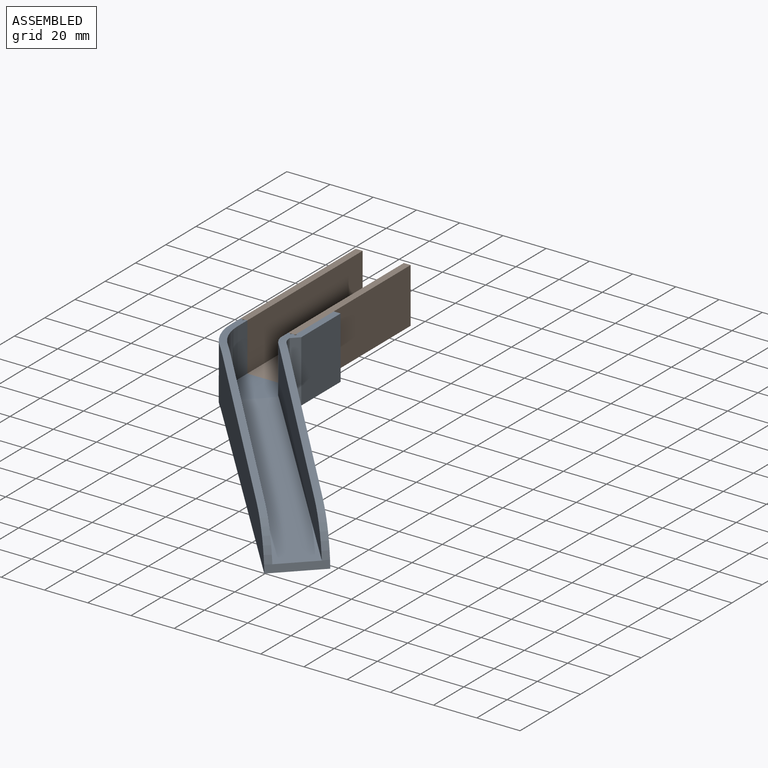
[diagram: assembled view]
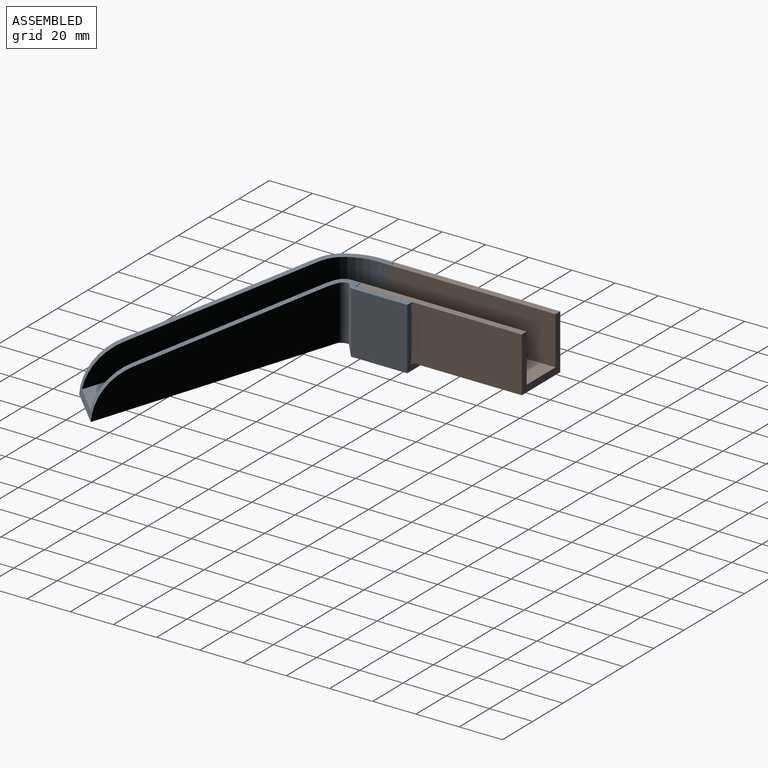
[diagram: assembled view, second angle]
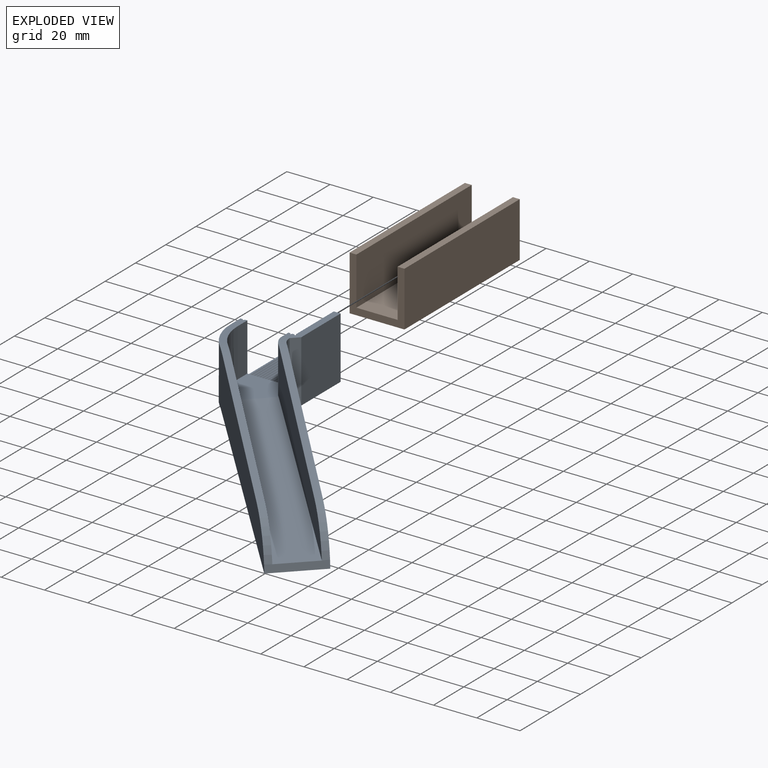
[diagram: exploded view]
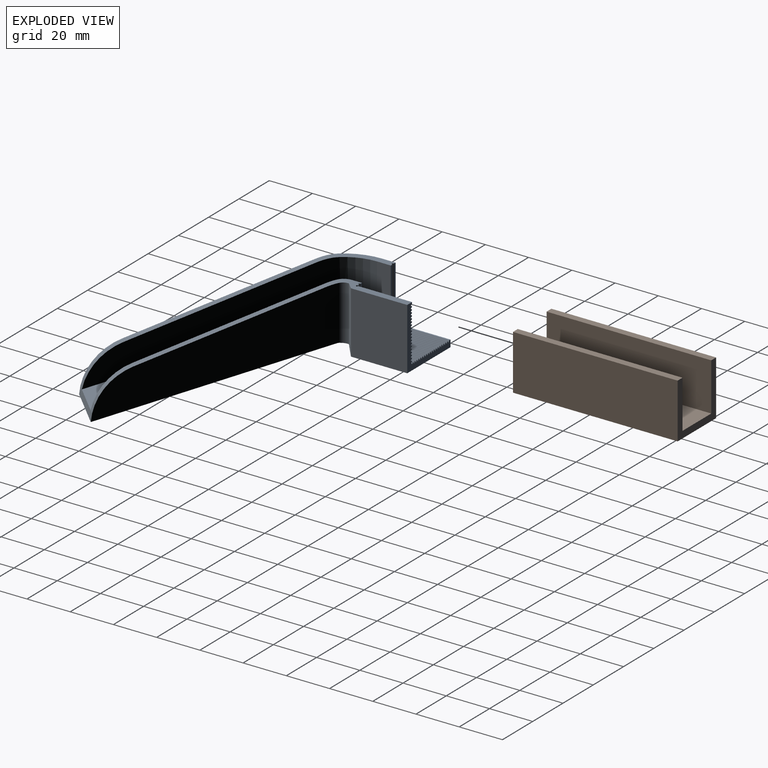
[diagram: exploded view, second angle]
ASSEMBLY  parts=2 mates=3
PART A: 246 faces, bbox 94.3x118.6x50.9 mm
  f0: plane 23.06x20.96mm, normal (0,1,0), area 60mm2, adj f1,f139,f142,f149,f152,f155,f237,f242
  f1: plane 23.57x0.89mm, normal (0.87,0.5,0), area 23.9mm2, adj f0,f139,f235,f242
  f2: plane 20.96x0.84mm, normal (0,1,0), area 17.5mm2, adj f4,f234,f237,f241
  f3: plane 24.92x1.07mm, normal (0,1,0), area 26.8mm2, adj f5,f136,f142,f238
  f4: cylinder r=0.48mm len=21.52mm, axis (1,0,0), area 16mm2, adj f2,f171,f234,f237
  f5: cylinder r=0.48mm len=1.35mm, axis (1,0,0), area 0.9mm2, adj f3,f136,f171,f238
  f6: plane 24.92x0.76mm, normal (-1,0,0), area 18.9mm2, adj f8,f139,f164,f231
  f7: plane 1.03x0mm, normal (-1,0,0), area 0mm2, adj f8,f169
  f8: cylinder r=0.48mm len=1.03mm, axis (0,0,1), area 0.7mm2, adj f6,f7,f139,f231
  f9: plane 24.92x0.24mm, normal (-1,0,0), area 6.1mm2, adj f11,f164,f228,f232
  f10: plane 0.79x0mm, normal (-1,0,0), area 0mm2, adj f11,f169
  f11: cylinder r=0.48mm len=0.79mm, axis (0,0,1), area 0.4mm2, adj f9,f10,f228,f232
  f12: plane 24.92x0.24mm, normal (-1,0,0), area 6.1mm2, adj f14,f164,f225,f229
  f13: plane 0.79x0mm, normal (-1,0,0), area 0mm2, adj f14,f169
  f14: cylinder r=0.48mm len=0.79mm, axis (0,0,1), area 0.4mm2, adj f12,f13,f225,f229
  f15: plane 24.92x0.24mm, normal (-1,0,0), area 6.1mm2, adj f17,f164,f222,f226
  f16: plane 0.79x0mm, normal (-1,0,0), area 0mm2, adj f17,f169
  f17: cylinder r=0.48mm len=0.79mm, axis (0,0,1), area 0.4mm2, adj f15,f16,f222,f226
  f18: plane 24.92x0.24mm, normal (-1,0,0), area 6.1mm2, adj f20,f164,f219,f223
  f19: plane 0.79x0mm, normal (-1,0,0), area 0mm2, adj f20,f169
  f20: cylinder r=0.48mm len=0.79mm, axis (0,0,1), area 0.4mm2, adj f18,f19,f219,f223
  f21: plane 24.92x0.24mm, normal (-1,0,0), area 6.1mm2, adj f23,f164,f216,f220
  f22: plane 0.79x0mm, normal (-1,0,0), area 0mm2, adj f23,f169
  f23: cylinder r=0.48mm len=0.79mm, axis (0,0,1), area 0.4mm2, adj f21,f22,f216,f220
  f24: plane 24.92x0.24mm, normal (-1,0,0), area 6.1mm2, adj f26,f164,f213,f217
  f25: plane 0.79x0mm, normal (-1,0,0), area 0mm2, adj f26,f169
  f26: cylinder r=0.48mm len=0.79mm, axis (0,0,1), area 0.4mm2, adj f24,f25,f213,f217
  f27: plane 24.92x0.24mm, normal (-1,0,0), area 6.1mm2, adj f29,f164,f210,f214
  f28: plane 0.79x0mm, normal (-1,0,0), area 0mm2, adj f29,f169
  f29: cylinder r=0.48mm len=0.79mm, axis (0,0,1), area 0.4mm2, adj f27,f28,f210,f214
  f30: plane 24.92x0.24mm, normal (-1,0,0), area 6.1mm2, adj f32,f164,f207,f211
  f31: plane 0.79x0mm, normal (-1,0,0), area 0mm2, adj f32,f169
  f32: cylinder r=0.48mm len=0.79mm, axis (0,0,1), area 0.4mm2, adj f30,f31,f207,f211
  f33: plane 24.92x0.24mm, normal (-1,0,0), area 6.1mm2, adj f35,f164,f202,f204
  f34: plane 0.79x0mm, normal (-1,0,0), area 0mm2, adj f35,f169
  f35: cylinder r=0.48mm len=0.79mm, axis (0,0,1), area 0.4mm2, adj f33,f34,f202,f204
  f36: plane 24.92x0.24mm, normal (-1,0,0), area 6.1mm2, adj f38,f164,f199,f201
  f37: plane 0.79x0mm, normal (-1,0,0), area 0mm2, adj f38,f169
  f38: cylinder r=0.48mm len=0.79mm, axis (0,0,1), area 0.4mm2, adj f36,f37,f199,f201
  f39: plane 24.92x0.24mm, normal (-1,0,0), area 6.1mm2, adj f41,f164,f196,f198
  f40: plane 0.79x0mm, normal (-1,0,0), area 0mm2, adj f41,f169
  f41: cylinder r=0.48mm len=0.79mm, axis (0,0,1), area 0.4mm2, adj f39,f40,f196,f198
  f42: plane 24.92x0.24mm, normal (-1,0,0), area 6.1mm2, adj f44,f164,f193,f195
  f43: plane 0.79x0mm, normal (-1,0,0), area 0mm2, adj f44,f169
  f44: cylinder r=0.48mm len=0.79mm, axis (0,0,1), area 0.4mm2, adj f42,f43,f193,f195
  f45: plane 24.92x0.24mm, normal (-1,0,0), area 6.1mm2, adj f47,f164,f190,f192
  f46: plane 0.79x0mm, normal (-1,0,0), area 0mm2, adj f47,f169
  f47: cylinder r=0.48mm len=0.79mm, axis (0,0,1), area 0.4mm2, adj f45,f46,f190,f192
  f48: plane 24.92x0.24mm, normal (-1,0,0), area 6.1mm2, adj f50,f164,f187,f189
  f49: plane 0.79x0mm, normal (-1,0,0), area 0mm2, adj f50,f169
  f50: cylinder r=0.48mm len=0.79mm, axis (0,0,1), area 0.4mm2, adj f48,f49,f187,f189
  f51: plane 24.92x0.24mm, normal (-1,0,0), area 6.1mm2, adj f53,f164,f184,f186
  f52: plane 0.79x0mm, normal (-1,0,0), area 0mm2, adj f53,f169
  f53: cylinder r=0.48mm len=0.79mm, axis (0,0,1), area 0.4mm2, adj f51,f52,f184,f186
  f54: plane 24.92x0.24mm, normal (-1,0,0), area 6.1mm2, adj f56,f164,f181,f183
  f55: plane 0.79x0mm, normal (-1,0,0), area 0mm2, adj f56,f169
  f56: cylinder r=0.48mm len=0.79mm, axis (0,0,1), area 0.4mm2, adj f54,f55,f181,f183
  f57: plane 24.92x0.24mm, normal (-1,0,0), area 6.1mm2, adj f59,f164,f178,f180
  f58: plane 0.79x0mm, normal (-1,0,0), area 0mm2, adj f59,f169
  f59: cylinder r=0.48mm len=0.79mm, axis (0,0,1), area 0.4mm2, adj f57,f58,f178,f180
  f60: plane 24.92x0.24mm, normal (-1,0,0), area 6.1mm2, adj f62,f164,f177,f208
  f61: plane 0.79x0mm, normal (-1,0,0), area 0mm2, adj f62,f169
  f62: cylinder r=0.48mm len=0.79mm, axis (0,0,1), area 0.4mm2, adj f60,f61,f177,f208
  f63: plane 24.92x0.31mm, normal (0,0,1), area 7.8mm2, adj f64,f164,f171,f239
  f64: plane 25.52x1.01mm, normal (-0.87,0,0.5), area 25.9mm2, adj f63,f65,f66,f164,f171
  f65: plane 25.52x1.01mm, normal (0.87,0,0.5), area 25.9mm2, adj f64,f66,f67,f164,f171
  f66: plane 0.48x0.41mm, normal (0,1,0), area 0.1mm2, adj f64,f65,f171
  f67: plane 24.92x0.24mm, normal (0,0,1), area 6.1mm2, adj f65,f68,f164,f171
  f68: plane 25.52x1.01mm, normal (-0.87,0,0.5), area 25.9mm2, adj f67,f69,f70,f164,f171
  f69: plane 25.52x1.01mm, normal (0.87,0,0.5), area 25.9mm2, adj f68,f70,f71,f164,f171
  f70: plane 0.48x0.41mm, normal (0,1,0), area 0.1mm2, adj f68,f69,f171
  f71: plane 24.92x0.24mm, normal (0,0,1), area 6.1mm2, adj f69,f72,f164,f171
  f72: plane 25.52x1.01mm, normal (-0.87,0,0.5), area 25.9mm2, adj f71,f73,f74,f164,f171
  f73: plane 25.52x1.01mm, normal (0.87,0,0.5), area 25.9mm2, adj f72,f74,f75,f164,f171
  f74: plane 0.48x0.41mm, normal (0,1,0), area 0.1mm2, adj f72,f73,f171
  f75: plane 24.92x0.24mm, normal (0,0,1), area 6.1mm2, adj f73,f76,f164,f171
  f76: plane 25.52x1.01mm, normal (-0.87,0,0.5), area 25.9mm2, adj f75,f77,f78,f164,f171
  f77: plane 25.52x1.01mm, normal (0.87,0,0.5), area 25.9mm2, adj f76,f78,f79,f164,f171
  f78: plane 0.48x0.41mm, normal (0,1,0), area 0.1mm2, adj f76,f77,f171
  f79: plane 24.92x0.24mm, normal (0,0,1), area 6.1mm2, adj f77,f80,f164,f171
  f80: plane 25.52x1.01mm, normal (-0.87,0,0.5), area 25.9mm2, adj f79,f81,f82,f164,f171
  f81: plane 25.52x1.01mm, normal (0.87,0,0.5), area 25.9mm2, adj f80,f82,f83,f164,f171
  f82: plane 0.48x0.41mm, normal (0,1,0), area 0.1mm2, adj f80,f81,f171
  f83: plane 24.92x0.24mm, normal (0,0,1), area 6.1mm2, adj f81,f84,f164,f171
  f84: plane 25.52x1.01mm, normal (-0.87,0,0.5), area 25.9mm2, adj f83,f85,f86,f164,f171
  f85: plane 25.52x1.01mm, normal (0.87,0,0.5), area 25.9mm2, adj f84,f86,f87,f164,f171
  f86: plane 0.48x0.41mm, normal (0,1,0), area 0.1mm2, adj f84,f85,f171
  f87: plane 24.92x0.24mm, normal (0,0,1), area 6.1mm2, adj f85,f88,f164,f171
  f88: plane 25.52x1.01mm, normal (-0.87,0,0.5), area 25.9mm2, adj f87,f89,f90,f164,f171
  f89: plane 25.52x1.01mm, normal (0.87,0,0.5), area 25.9mm2, adj f88,f90,f91,f164,f171
  f90: plane 0.48x0.41mm, normal (0,1,0), area 0.1mm2, adj f88,f89,f171
  f91: plane 24.92x0.24mm, normal (0,0,1), area 6.1mm2, adj f89,f92,f164,f171
  f92: plane 25.52x1.01mm, normal (-0.87,0,0.5), area 25.9mm2, adj f91,f93,f94,f164,f171
  f93: plane 25.52x1.01mm, normal (0.87,0,0.5), area 25.9mm2, adj f92,f94,f95,f164,f171
  f94: plane 0.48x0.41mm, normal (0,1,0), area 0.1mm2, adj f92,f93,f171
  f95: plane 24.92x0.24mm, normal (0,0,1), area 6.1mm2, adj f93,f96,f164,f171
  f96: plane 25.52x1.01mm, normal (-0.87,0,0.5), area 25.9mm2, adj f95,f97,f98,f164,f171
  f97: plane 25.52x1.01mm, normal (0.87,0,0.5), area 25.9mm2, adj f96,f98,f135,f164,f171
  f98: plane 0.48x0.41mm, normal (0,1,0), area 0.1mm2, adj f96,f97,f171
  f99: plane 24.92x0.24mm, normal (0,0,1), area 6.1mm2, adj f100,f105,f164,f171
  f100: plane 25.52x1.01mm, normal (-0.87,0,0.5), area 25.9mm2, adj f99,f101,f102,f164,f171
  f101: plane 25.52x1.01mm, normal (0.87,0,0.5), area 25.9mm2, adj f100,f102,f160,f164,f171
  f102: plane 0.48x0.41mm, normal (0,1,0), area 0.1mm2, adj f100,f101,f171
  f103: plane 24.92x0.24mm, normal (0,0,1), area 6.1mm2, adj f104,f109,f164,f171
  f104: plane 25.52x1.01mm, normal (-0.87,0,0.5), area 25.9mm2, adj f103,f105,f106,f164,f171
  f105: plane 25.52x1.01mm, normal (0.87,0,0.5), area 25.9mm2, adj f99,f104,f106,f164,f171
  f106: plane 0.48x0.41mm, normal (0,1,0), area 0.1mm2, adj f104,f105,f171
  f107: plane 24.92x0.24mm, normal (0,0,1), area 6.1mm2, adj f108,f113,f164,f171
  f108: plane 25.52x1.01mm, normal (-0.87,0,0.5), area 25.9mm2, adj f107,f109,f110,f164,f171
  f109: plane 25.52x1.01mm, normal (0.87,0,0.5), area 25.9mm2, adj f103,f108,f110,f164,f171
  f110: plane 0.48x0.41mm, normal (0,1,0), area 0.1mm2, adj f108,f109,f171
  f111: plane 24.92x0.24mm, normal (0,0,1), area 6.1mm2, adj f112,f117,f164,f171
  f112: plane 25.52x1.01mm, normal (-0.87,0,0.5), area 25.9mm2, adj f111,f113,f114,f164,f171
  f113: plane 25.52x1.01mm, normal (0.87,0,0.5), area 25.9mm2, adj f107,f112,f114,f164,f171
  f114: plane 0.48x0.41mm, normal (0,1,0), area 0.1mm2, adj f112,f113,f171
  f115: plane 24.92x0.24mm, normal (0,0,1), area 6.1mm2, adj f116,f121,f164,f171
  f116: plane 25.52x1.01mm, normal (-0.87,0,0.5), area 25.9mm2, adj f115,f117,f118,f164,f171
  f117: plane 25.52x1.01mm, normal (0.87,0,0.5), area 25.9mm2, adj f111,f116,f118,f164,f171
  f118: plane 0.48x0.41mm, normal (0,1,0), area 0.1mm2, adj f116,f117,f171
  f119: plane 24.92x0.24mm, normal (0,0,1), area 6.1mm2, adj f120,f125,f164,f171
  f120: plane 25.52x1.01mm, normal (-0.87,0,0.5), area 25.9mm2, adj f119,f121,f122,f164,f171
  f121: plane 25.52x1.01mm, normal (0.87,0,0.5), area 25.9mm2, adj f115,f120,f122,f164,f171
  f122: plane 0.48x0.41mm, normal (0,1,0), area 0.1mm2, adj f120,f121,f171
  f123: plane 24.92x0.24mm, normal (0,0,1), area 6.1mm2, adj f124,f129,f164,f171
  f124: plane 25.52x1.01mm, normal (-0.87,0,0.5), area 25.9mm2, adj f123,f125,f126,f164,f171
  f125: plane 25.52x1.01mm, normal (0.87,0,0.5), area 25.9mm2, adj f119,f124,f126,f164,f171
  f126: plane 0.48x0.41mm, normal (0,1,0), area 0.1mm2, adj f124,f125,f171
  f127: plane 24.92x0.24mm, normal (0,0,1), area 6.1mm2, adj f128,f133,f164,f171
  f128: plane 25.52x1.01mm, normal (-0.87,0,0.5), area 25.9mm2, adj f127,f129,f130,f164,f171
  f129: plane 25.52x1.01mm, normal (0.87,0,0.5), area 25.9mm2, adj f123,f128,f130,f164,f171
  f130: plane 0.48x0.41mm, normal (0,1,0), area 0.1mm2, adj f128,f129,f171
  f131: plane 24.92x0.24mm, normal (0,0,1), area 6.1mm2, adj f132,f164,f171,f174
  f132: plane 25.52x1.01mm, normal (-0.87,0,0.5), area 25.9mm2, adj f131,f133,f134,f164,f171
  f133: plane 25.52x1.01mm, normal (0.87,0,0.5), area 25.9mm2, adj f127,f132,f134,f164,f171
  f134: plane 0.48x0.41mm, normal (0,1,0), area 0.1mm2, adj f132,f133,f171
  f135: plane 24.92x0.24mm, normal (0,0,1), area 6.1mm2, adj f97,f164,f171,f173
  f136: plane 31.75x28.58mm, normal (-1,0,0), area 248.5mm2, adj f3,f5,f138,f142,f145,f160,f163,f164
  f137: plane 25.4x0.44mm, normal (1,0,0), area 11.1mm2, adj f138,f146,f157,f165
  f138: plane 26.89x21.99mm, normal (0,0,-1), area 371.9mm2, adj f136,f137,f143,f145,f146,f147,f166
  f139: plane 31.35x6.36mm, normal (0,0,1), area 101mm2, adj f0,f1,f6,f8,f140,f152,f154,f157
  f140: plane 24.92x0.84mm, normal (0,1,0), area 20.8mm2, adj f139,f168,f170,f235
  f141: plane 54.8x54.8mm, normal (0.24,-0.24,0.94), area 251.4mm2, adj f144,f151,f157,f158
  f142: plane 22.53x8.07mm, normal (0,0,1), area 71.4mm2, adj f0,f3,f136,f145,f149,f153,f159,f237
  f143: plane 68.76x68.76mm, normal (-0.71,-0.71,0), area 1959.7mm2, adj f138,f145,f147,f148,f158,f159
  f144: plane 67.27x67.27mm, normal (0.71,0.71,0), area 1906.8mm2, adj f141,f146,f147,f157,f158
  f145: cylinder r=25.4mm len=25.4mm, axis (0,0,-1), area 506.6mm2, adj f136,f138,f142,f143,f159
  f146: cylinder r=5.08mm len=25.38mm, axis (0,0,1), area 100.5mm2, adj f137,f138,f144,f157
  f147: plane 85.23x85.23mm, normal (-0.18,0.18,-0.97), area 2501.1mm2, adj f138,f143,f144,f158
  f148: plane 54.8x54.8mm, normal (0.24,-0.24,0.94), area 251.4mm2, adj f143,f150,f158,f159
  f149: plane 22.23x6.35mm, normal (1,0,0), area 141.1mm2, adj f0,f142,f153,f155
  f150: plane 68.41x68.41mm, normal (0.71,0.71,0), area 1641.1mm2, adj f148,f153,f155,f156,f158,f159
  f151: plane 66.93x66.93mm, normal (-0.71,-0.71,0), area 1594.8mm2, adj f141,f154,f155,f156,f157,f158
  f152: plane 22.23x4.25mm, normal (-1,0,0), area 94.4mm2, adj f0,f139,f154,f155
  f153: cylinder r=22.23mm len=22.23mm, axis (0,0,-1), area 387.8mm2, adj f142,f149,f150,f155,f159
  f154: cylinder r=8.26mm len=22.23mm, axis (0,0,1), area 143.1mm2, adj f139,f151,f152,f155,f157
  f155: plane 23.85x21.76mm, normal (0,0,1), area 360.3mm2, adj f0,f149,f150,f151,f152,f153,f154,f156
  f156: plane 80.1x80.1mm, normal (0.18,-0.18,0.97), area 1858mm2, adj f150,f151,f155,f158
  f157: cylinder r=25.4mm len=10.14mm, axis (-0.71,-0.71,0), area 29.9mm2, adj f137,f139,f141,f144,f146,f151,f154
  f158: cylinder r=25.4mm len=29.68mm, axis (0.71,0.71,0), area 250.4mm2, adj f141,f143,f144,f147,f148,f150,f151,f156
  f159: cylinder r=25.4mm len=8.53mm, axis (-0.71,-0.71,0), area 28.4mm2, adj f142,f143,f145,f148,f150,f153
  f160: plane 24.92x0.76mm, normal (0,0,1), area 18.9mm2, adj f101,f136,f164,f171
  f161: plane 24.92x0.31mm, normal (-1,0,0), area 7.8mm2, adj f164,f172,f205,f239
  f162: plane 28.58x26.04mm, normal (1,0,0), area 744mm2, adj f139,f163,f164,f165
  f163: plane 28.58x26.04mm, normal (0,0,-1), area 744mm2, adj f136,f162,f164,f166
  f164: plane 28.58x28.58mm, normal (0,1,0), area 153.6mm2, adj f6,f9,f12,f15,f18,f21,f24,f27
  f165: plane 28.58x3.18mm, normal (0.71,-0.71,0), area 121.2mm2, adj f137,f139,f162,f166
  f166: plane 28.58x3.18mm, normal (0,-0.71,-0.71), area 121.2mm2, adj f136,f138,f163,f165
  f167: plane 1.51x0mm, normal (-1,0,0), area 0mm2, adj f169,f172
  f168: cylinder r=0.48mm len=25.4mm, axis (0,0,1), area 18.9mm2, adj f139,f140,f169,f170
  f169: cylinder r=0.48mm len=25.88mm, axis (0,0,-1), area 19.3mm2, adj f7,f10,f13,f16,f19,f22,f25,f28
  f170: cylinder r=0.48mm len=1.59mm, axis (1,0,0), area 0.9mm2, adj f140,f168,f171,f235
  f171: cylinder r=0.48mm len=25.88mm, axis (-1,0,0), area 27.6mm2, adj f4,f5,f63,f64,f65,f66,f67,f68
  f172: cylinder r=0.48mm len=1.51mm, axis (0,0,1), area 0.6mm2, adj f161,f167,f171,f205,f239
  f173: plane 25.52x1.01mm, normal (-0.87,0,0.5), area 25.9mm2, adj f135,f164,f171,f174,f175
  f174: plane 25.52x1.01mm, normal (0.87,0,0.5), area 25.9mm2, adj f131,f164,f171,f173,f175
  f175: plane 0.48x0.41mm, normal (0,1,0), area 0.1mm2, adj f171,f173,f174
  f176: plane 0.48x0.41mm, normal (0,1,0), area 0.1mm2, adj f169,f177,f178
  f177: plane 25.52x1.01mm, normal (-0.5,0,-0.87), area 25.9mm2, adj f60,f62,f164,f176,f178
  f178: plane 25.52x1.01mm, normal (-0.5,0,0.87), area 25.9mm2, adj f57,f59,f164,f176,f177
  f179: plane 0.48x0.41mm, normal (0,1,0), area 0.1mm2, adj f169,f180,f181
  f180: plane 25.52x1.01mm, normal (-0.5,0,-0.87), area 25.9mm2, adj f57,f59,f164,f179,f181
  f181: plane 25.52x1.01mm, normal (-0.5,0,0.87), area 25.9mm2, adj f54,f56,f164,f179,f180
  f182: plane 0.48x0.41mm, normal (0,1,0), area 0.1mm2, adj f169,f183,f184
  f183: plane 25.52x1.01mm, normal (-0.5,0,-0.87), area 25.9mm2, adj f54,f56,f164,f182,f184
  f184: plane 25.52x1.01mm, normal (-0.5,0,0.87), area 25.9mm2, adj f51,f53,f164,f182,f183
  f185: plane 0.48x0.41mm, normal (0,1,0), area 0.1mm2, adj f169,f186,f187
  f186: plane 25.52x1.01mm, normal (-0.5,0,-0.87), area 25.9mm2, adj f51,f53,f164,f185,f187
  f187: plane 25.52x1.01mm, normal (-0.5,0,0.87), area 25.9mm2, adj f48,f50,f164,f185,f186
  f188: plane 0.48x0.41mm, normal (0,1,0), area 0.1mm2, adj f169,f189,f190
  f189: plane 25.52x1.01mm, normal (-0.5,0,-0.87), area 25.9mm2, adj f48,f50,f164,f188,f190
  f190: plane 25.52x1.01mm, normal (-0.5,0,0.87), area 25.9mm2, adj f45,f47,f164,f188,f189
  f191: plane 0.48x0.41mm, normal (0,1,0), area 0.1mm2, adj f169,f192,f193
  f192: plane 25.52x1.01mm, normal (-0.5,0,-0.87), area 25.9mm2, adj f45,f47,f164,f191,f193
  f193: plane 25.52x1.01mm, normal (-0.5,0,0.87), area 25.9mm2, adj f42,f44,f164,f191,f192
  f194: plane 0.48x0.41mm, normal (0,1,0), area 0.1mm2, adj f169,f195,f196
  f195: plane 25.52x1.01mm, normal (-0.5,0,-0.87), area 25.9mm2, adj f42,f44,f164,f194,f196
  f196: plane 25.52x1.01mm, normal (-0.5,0,0.87), area 25.9mm2, adj f39,f41,f164,f194,f195
  f197: plane 0.48x0.41mm, normal (0,1,0), area 0.1mm2, adj f169,f198,f199
  f198: plane 25.52x1.01mm, normal (-0.5,0,-0.87), area 25.9mm2, adj f39,f41,f164,f197,f199
  f199: plane 25.52x1.01mm, normal (-0.5,0,0.87), area 25.9mm2, adj f36,f38,f164,f197,f198
  f200: plane 0.48x0.41mm, normal (0,1,0), area 0.1mm2, adj f169,f201,f202
  f201: plane 25.52x1.01mm, normal (-0.5,0,-0.87), area 25.9mm2, adj f36,f38,f164,f200,f202
  f202: plane 25.52x1.01mm, normal (-0.5,0,0.87), area 25.9mm2, adj f33,f35,f164,f200,f201
  f203: plane 0.48x0.41mm, normal (0,1,0), area 0.1mm2, adj f169,f204,f205
  f204: plane 25.52x1.01mm, normal (-0.5,0,-0.87), area 25.9mm2, adj f33,f35,f164,f203,f205
  f205: plane 25.52x1.01mm, normal (-0.5,0,0.87), area 25.9mm2, adj f161,f164,f172,f203,f204
  f206: plane 0.48x0.41mm, normal (0,1,0), area 0.1mm2, adj f169,f207,f208
  f207: plane 25.52x1.01mm, normal (-0.5,0,-0.87), area 25.9mm2, adj f30,f32,f164,f206,f208
  f208: plane 25.52x1.01mm, normal (-0.5,0,0.87), area 25.9mm2, adj f60,f62,f164,f206,f207
  f209: plane 0.48x0.41mm, normal (0,1,0), area 0.1mm2, adj f169,f210,f211
  f210: plane 25.52x1.01mm, normal (-0.5,0,-0.87), area 25.9mm2, adj f27,f29,f164,f209,f211
  f211: plane 25.52x1.01mm, normal (-0.5,0,0.87), area 25.9mm2, adj f30,f32,f164,f209,f210
  f212: plane 0.48x0.41mm, normal (0,1,0), area 0.1mm2, adj f169,f213,f214
  f213: plane 25.52x1.01mm, normal (-0.5,0,-0.87), area 25.9mm2, adj f24,f26,f164,f212,f214
  f214: plane 25.52x1.01mm, normal (-0.5,0,0.87), area 25.9mm2, adj f27,f29,f164,f212,f213
  f215: plane 0.48x0.41mm, normal (0,1,0), area 0.1mm2, adj f169,f216,f217
  f216: plane 25.52x1.01mm, normal (-0.5,0,-0.87), area 25.9mm2, adj f21,f23,f164,f215,f217
  f217: plane 25.52x1.01mm, normal (-0.5,0,0.87), area 25.9mm2, adj f24,f26,f164,f215,f216
  f218: plane 0.48x0.41mm, normal (0,1,0), area 0.1mm2, adj f169,f219,f220
  f219: plane 25.52x1.01mm, normal (-0.5,0,-0.87), area 25.9mm2, adj f18,f20,f164,f218,f220
  f220: plane 25.52x1.01mm, normal (-0.5,0,0.87), area 25.9mm2, adj f21,f23,f164,f218,f219
  f221: plane 0.48x0.41mm, normal (0,1,0), area 0.1mm2, adj f169,f222,f223
  f222: plane 25.52x1.01mm, normal (-0.5,0,-0.87), area 25.9mm2, adj f15,f17,f164,f221,f223
  f223: plane 25.52x1.01mm, normal (-0.5,0,0.87), area 25.9mm2, adj f18,f20,f164,f221,f222
  f224: plane 0.48x0.41mm, normal (0,1,0), area 0.1mm2, adj f169,f225,f226
  f225: plane 25.52x1.01mm, normal (-0.5,0,-0.87), area 25.9mm2, adj f12,f14,f164,f224,f226
  f226: plane 25.52x1.01mm, normal (-0.5,0,0.87), area 25.9mm2, adj f15,f17,f164,f224,f225
  f227: plane 0.48x0.41mm, normal (0,1,0), area 0.1mm2, adj f169,f228,f229
  f228: plane 25.52x1.01mm, normal (-0.5,0,-0.87), area 25.9mm2, adj f9,f11,f164,f227,f229
  f229: plane 25.52x1.01mm, normal (-0.5,0,0.87), area 25.9mm2, adj f12,f14,f164,f227,f228
  f230: plane 0.48x0.41mm, normal (0,1,0), area 0.1mm2, adj f169,f231,f232
  f231: plane 25.52x1.01mm, normal (-0.5,0,-0.87), area 25.9mm2, adj f6,f8,f164,f230,f232
  f232: plane 25.52x1.01mm, normal (-0.5,0,0.87), area 25.9mm2, adj f9,f11,f164,f230,f231
  f233: plane 0.47x0.41mm, normal (0,0,1), area 0.1mm2, adj f171,f234,f235
  f234: plane 1.94x1mm, normal (0.87,0.5,0), area 1.4mm2, adj f2,f4,f233,f235,f241
  f235: plane 25.51x1mm, normal (-0.87,0.5,0), area 25.9mm2, adj f1,f139,f140,f170,f233,f234,f243,f244
  f236: plane 0.47x0.41mm, normal (0,0,1), area 0.1mm2, adj f171,f237,f238
  f237: plane 25.51x1mm, normal (-0.87,0.5,0), area 25.3mm2, adj f0,f2,f4,f142,f236,f238,f240,f241
  f238: plane 25.51x1mm, normal (0.87,0.5,0), area 25.9mm2, adj f3,f5,f142,f236,f237
  f239: cylinder r=0.44mm len=25.04mm, axis (0,1,0), area 52.3mm2, adj f63,f161,f164,f171,f172
  f240: plane 0.03x0.02mm, normal (1,0,0), area 0mm2, adj f237,f241,f242
  f241: plane 21.97x0.89mm, normal (0,0.5,0.87), area 22mm2, adj f2,f234,f237,f240,f242
  f242: plane 21.97x0.89mm, normal (0,0.5,-0.87), area 22mm2, adj f0,f1,f237,f240,f241
  f243: plane 0.04x0.04mm, normal (-1,0,0), area 0mm2, adj f235,f244,f245
  f244: plane 0.04x0.02mm, normal (0,0.5,-0.87), area 0mm2, adj f235,f243,f245
  f245: plane 0.04x0.02mm, normal (0,0.5,0.87), area 0mm2, adj f235,f243,f244
PART B: 10 faces, bbox 25.4x76.2x25.4 mm
  f0: plane 76.2x22.23mm, normal (1,0,0), area 1693.5mm2, adj f1,f7,f8,f9
  f1: plane 76.2x3.18mm, normal (0,0,1), area 241.9mm2, adj f0,f2,f8,f9
  f2: plane 76.2x25.4mm, normal (-1,0,0), area 1935.5mm2, adj f1,f3,f8,f9
  f3: plane 76.2x25.4mm, normal (0,0,-1), area 1935.5mm2, adj f2,f4,f8,f9
  f4: plane 76.2x25.4mm, normal (1,0,0), area 1935.5mm2, adj f3,f5,f8,f9
  f5: plane 76.2x3.18mm, normal (0,0,1), area 241.9mm2, adj f4,f6,f8,f9
  f6: plane 76.2x22.23mm, normal (-1,0,0), area 1693.5mm2, adj f5,f7,f8,f9
  f7: plane 76.2x19.05mm, normal (0,0,1), area 1451.6mm2, adj f0,f6,f8,f9
  f8: plane 25.4x25.4mm, normal (0,-1,0), area 221.8mm2, adj f0,f1,f2,f3,f4,f5,f6,f7
  f9: plane 25.4x25.4mm, normal (0,1,0), area 221.8mm2, adj f0,f1,f2,f3,f4,f5,f6,f7
PLACE A t=(32.69,7.61,12.18)mm
PLACE B t=(19.99,83.81,50.28)mm fixed
MATE planar B.f8 <-> A.f3  axis (0,-1,0) through (29.51,7.61,62.98)mm
MATE planar A.f160 <-> B.f3  axis (0,0,1) through (7.66,20.56,37.58)mm
MATE planar A.f57 <-> B.f4  axis (-1,0,0) through (32.69,20.56,49.64)mm
